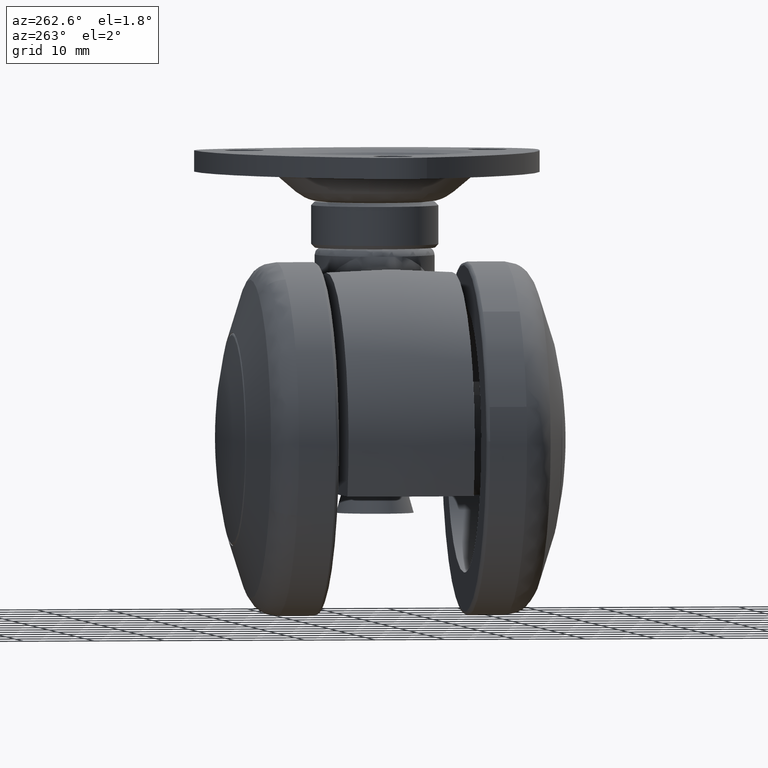
[diagram: clean part render]
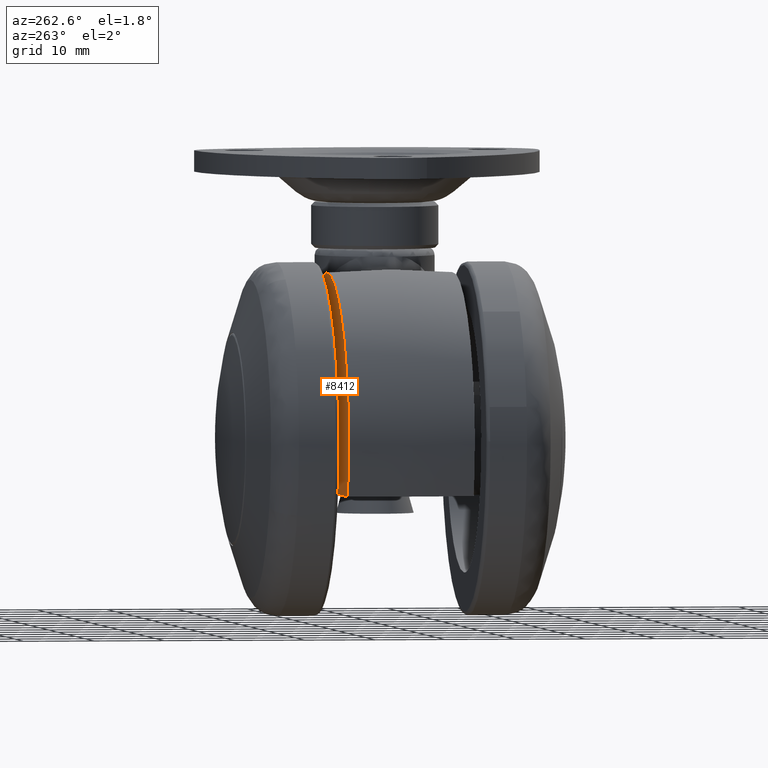
[diagram: same view with one face highlighted and labeled with its STEP entity id]
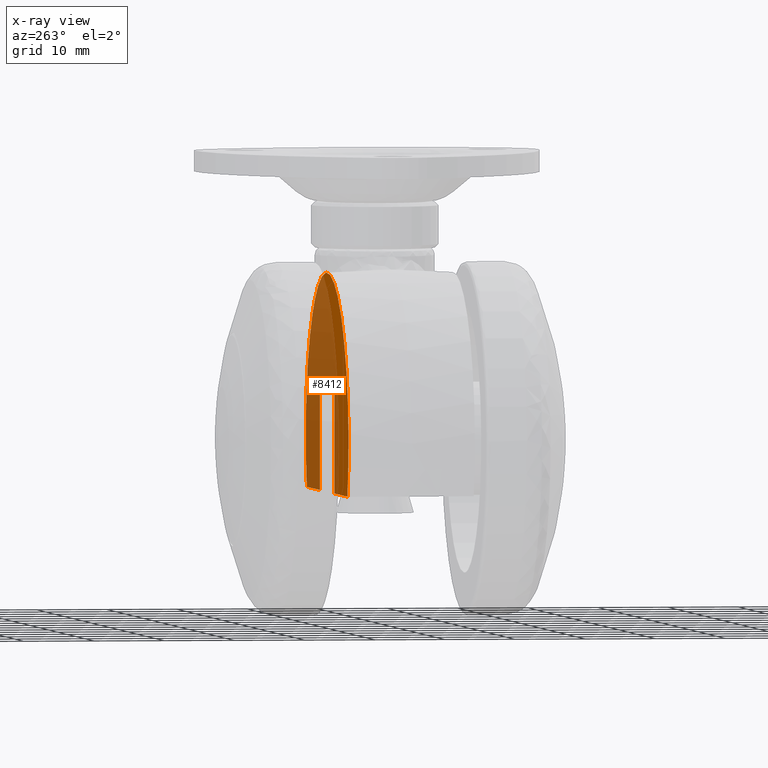
[diagram: x-ray of the same camera — body ghosted, the highlighted face saturated]
A machine part, auxiliary view. The second image highlights one B-rep face of the part: STEP entity #8412.
The next image is the same camera in x-ray: the body ghosted, the highlighted face saturated — about 66% of this face is hidden behind the body in this view.
In plain terms, the highlighted face is a freeform B-spline surface patch.
Its self-contained STEP definition (entity closure, byte-faithful):
#6931=CARTESIAN_POINT('',(15.987109898350051,8.999999997297421,17.224073311950999));
#6932=VERTEX_POINT('',#6931);
#7055=CARTESIAN_POINT('',(13.588231695146179,9.0,19.173156694149551));
#7056=VERTEX_POINT('',#7055);
#7084=CARTESIAN_POINT('',(13.588231695146179,9.0,19.173156694149551));
#7085=CARTESIAN_POINT('',(14.851870893205090,8.999999998648711,18.277623611735049));
#7086=CARTESIAN_POINT('',(15.987109898350051,8.999999997297421,17.224073311950999));
#7087=QUASI_UNIFORM_CURVE('',2,(#7084,#7085,#7086),.UNSPECIFIED.,.F.,.U.);
#7088=EDGE_CURVE('',#7056,#6932,#7087,.T.);
#8160=CARTESIAN_POINT('',(8.000000000000199,9.0,7.999999999999799));
#8161=VERTEX_POINT('',#8160);
#8162=CARTESIAN_POINT('',(-7.999999999999789,9.0,7.999999999999799));
#8163=VERTEX_POINT('',#8162);
#8164=CARTESIAN_POINT('',(8.000000000000199,9.0,7.999999999999799));
#8165=CARTESIAN_POINT('',(-7.999999999999789,9.0,7.999999999999799));
#8166=QUASI_UNIFORM_CURVE('',1,(#8164,#8165),.UNSPECIFIED.,.F.,.U.);
#8167=EDGE_CURVE('',#8161,#8163,#8166,.T.);
#8230=CARTESIAN_POINT('',(-7.999999999999789,8.999999999999901,-7.500000000000000));
#8231=VERTEX_POINT('',#8230);
#8237=CARTESIAN_POINT('',(-7.999999999999789,8.999999999999901,-7.500000000000000));
#8238=CARTESIAN_POINT('',(-7.999999999999789,9.0,7.999999999999799));
#8239=QUASI_UNIFORM_CURVE('',1,(#8237,#8238),.UNSPECIFIED.,.F.,.U.);
#8240=EDGE_CURVE('',#8231,#8163,#8239,.T.);
#8252=CARTESIAN_POINT('',(8.000000000000231,8.999999999999901,-7.500000000000000));
#8253=VERTEX_POINT('',#8252);
#8254=CARTESIAN_POINT('',(8.000000000000231,8.999999999999901,-7.500000000000000));
#8255=CARTESIAN_POINT('',(8.000000000000199,9.0,7.999999999999799));
#8256=QUASI_UNIFORM_CURVE('',1,(#8254,#8255),.UNSPECIFIED.,.F.,.U.);
#8257=EDGE_CURVE('',#8253,#8161,#8256,.T.);
#8359=CARTESIAN_POINT('',(-25.846177005981492,9.0,-9.047908435020604));
#8360=CARTESIAN_POINT('',(-25.846177005981492,9.0,25.037068327557069));
#8361=CARTESIAN_POINT('',(25.843234505531360,9.0,-9.047908435020604));
#8362=CARTESIAN_POINT('',(25.843234505531360,9.0,25.037068327557069));
#8363=B_SPLINE_SURFACE_WITH_KNOTS('',1,1,((#8359,#8361),(#8360,#8362)),.UNSPECIFIED.,.F.,.F.,.U.,(2,2),(2,2),(0.0,34.084976762577668),(0.0,51.689411511512837),.UNSPECIFIED.);
#8364=ORIENTED_EDGE('',*,*,#8240,.F.);
#8365=CARTESIAN_POINT('',(-22.271056962330899,9.0,-7.500000000000000));
#8366=VERTEX_POINT('',#8365);
#8367=CARTESIAN_POINT('',(-22.271056962330899,9.0,-7.500000000000000));
#8368=CARTESIAN_POINT('',(-7.999999999999789,8.999999999999901,-7.500000000000000));
#8369=QUASI_UNIFORM_CURVE('',1,(#8367,#8368),.UNSPECIFIED.,.F.,.U.);
#8370=EDGE_CURVE('',#8366,#8231,#8369,.T.);
#8371=ORIENTED_EDGE('',*,*,#8370,.F.);
#8372=CARTESIAN_POINT('',(-22.271056962330888,9.0,-7.500000000000004));
#8373=CARTESIAN_POINT('',(-27.716981276559199,9.0,8.671532081962837));
#8374=CARTESIAN_POINT('',(-14.025412138785050,9.0,18.855709813120480));
#8375=CARTESIAN_POINT('',(-0.333843001010914,9.0,29.039887544278116));
#8376=CARTESIAN_POINT('',(13.588231695146179,9.0,19.173156694149551));
#8384=(BOUNDED_CURVE()B_SPLINE_CURVE(2,(#8372,#8373,#8374,#8375,#8376),.UNSPECIFIED.,.F.,.U.)B_SPLINE_CURVE_WITH_KNOTS((3,2,3),(0.0,0.500000000000000,1.0),.UNSPECIFIED.)CURVE()GEOMETRIC_REPRESENTATION_ITEM()RATIONAL_B_SPLINE_CURVE((1.0,0.809178299804896,1.0,0.809178299804896,1.0))REPRESENTATION_ITEM(''));
#8385=EDGE_CURVE('',#8366,#7056,#8384,.T.);
#8386=ORIENTED_EDGE('',*,*,#8385,.T.);
#8387=ORIENTED_EDGE('',*,*,#7088,.T.);
#8388=CARTESIAN_POINT('',(22.271056962330899,9.0,-7.500000000000000));
#8389=VERTEX_POINT('',#8388);
#8390=CARTESIAN_POINT('',(15.987109898350051,8.999999997297421,17.224073311950999));
#8391=CARTESIAN_POINT('',(27.117918141920033,8.999999998648709,6.892541800001062));
#8392=CARTESIAN_POINT('',(22.271056962330899,9.0,-7.500000000000000));
#8400=(BOUNDED_CURVE()B_SPLINE_CURVE(2,(#8390,#8391,#8392),.UNSPECIFIED.,.F.,.U.)CURVE()GEOMETRIC_REPRESENTATION_ITEM()QUASI_UNIFORM_CURVE()RATIONAL_B_SPLINE_CURVE((1.0,0.839882926631558,1.0))REPRESENTATION_ITEM(''));
#8401=EDGE_CURVE('',#6932,#8389,#8400,.T.);
#8402=ORIENTED_EDGE('',*,*,#8401,.T.);
#8403=CARTESIAN_POINT('',(8.000000000000231,8.999999999999901,-7.500000000000000));
#8404=CARTESIAN_POINT('',(22.271056962330899,9.0,-7.500000000000000));
#8405=QUASI_UNIFORM_CURVE('',1,(#8403,#8404),.UNSPECIFIED.,.F.,.U.);
#8406=EDGE_CURVE('',#8253,#8389,#8405,.T.);
#8407=ORIENTED_EDGE('',*,*,#8406,.F.);
#8408=ORIENTED_EDGE('',*,*,#8257,.T.);
#8409=ORIENTED_EDGE('',*,*,#8167,.T.);
#8410=EDGE_LOOP('',(#8364,#8371,#8386,#8387,#8402,#8407,#8408,#8409));
#8411=FACE_OUTER_BOUND('',#8410,.T.);
#8412=ADVANCED_FACE('',(#8411),#8363,.T.);